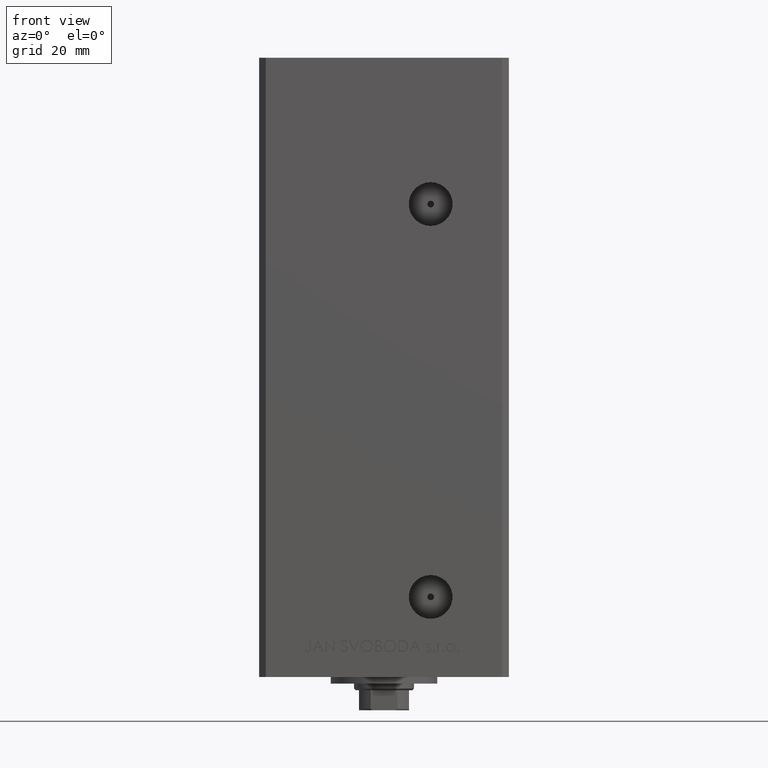
[diagram: clean part render]
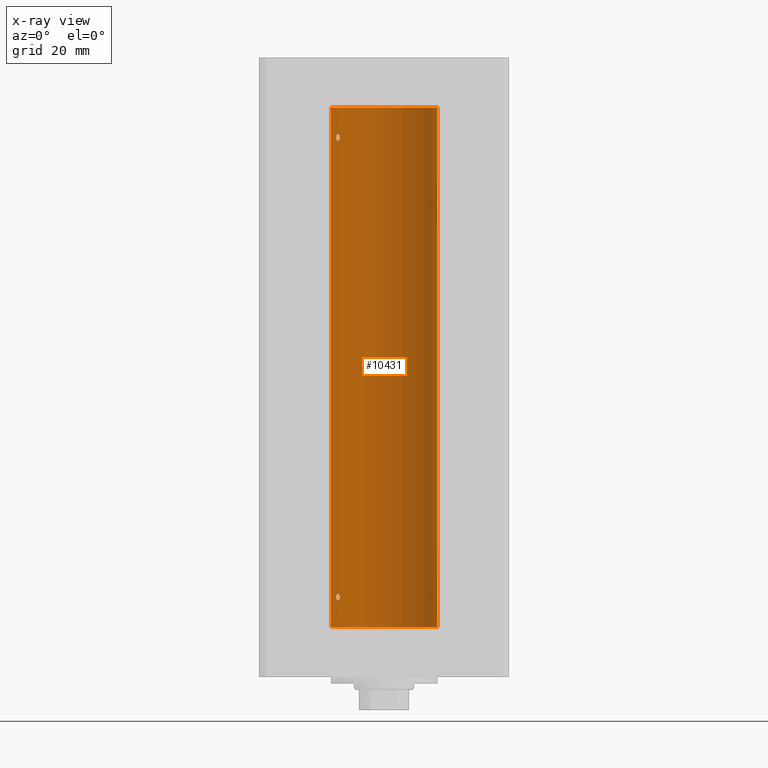
[diagram: x-ray — body ghosted, one internal face saturated and labeled with its STEP entity id]
A machine part, front view, then the same camera in x-ray: the body is ghosted and one INTERNAL B-rep face — a face not visible from any outside direction — is saturated and labeled: STEP entity #10431.
In plain terms, the highlighted cylindrical surface (partial cylindrical patch) has radius 16 mm, axis along (-0, -0, -1).
Its self-contained STEP definition (entity closure, byte-faithful):
#711 = EDGE_LOOP ( 'NONE', ( #36551, #17384, #41430, #24969 ) ) ;
#1526 = CARTESIAN_POINT ( 'NONE',  ( -14.38749456993815912, 6.999999999999998224, 147.0000000000000000 ) ) ;
#2319 = DIRECTION ( 'NONE',  ( 1.000000000000000000, 0.000000000000000000, 0.000000000000000000 ) ) ;
#2386 = CARTESIAN_POINT ( 'NONE',  ( -13.32426099938365383, 8.858246960865843178, 146.4688748775329827 ) ) ;
#3140 = CARTESIAN_POINT ( 'NONE',  ( -13.25390108270225298, 8.962947079338393408, 146.7214357623584817 ) ) ;
#3337 = CIRCLE ( 'NONE', #13748, 16.00000000000000000 ) ;
#3692 = DIRECTION ( 'NONE',  ( -0.000000000000000000, -0.000000000000000000, -1.000000000000000000 ) ) ;
#3745 = ORIENTED_EDGE ( 'NONE', *, *, #6053, .F. ) ;
#3892 = ORIENTED_EDGE ( 'NONE', *, *, #44762, .F. ) ;
#3959 = EDGE_CURVE ( 'NONE', #33557, #22701, #13990, .T. ) ;
#4556 = CARTESIAN_POINT ( 'NONE',  ( -14.17576283486774713, 7.420212263225987925, 147.8252530343043247 ) ) ;
#4792 = CARTESIAN_POINT ( 'NONE',  ( -14.37227256866306213, 7.031482256185710433, 147.2844572409764794 ) ) ;
#5147 = AXIS2_PLACEMENT_3D ( 'NONE', #33327, #44391, #10706 ) ;
#5203 = CARTESIAN_POINT ( 'NONE',  ( -14.38749456993816800, 6.999999999999984013, 9.000000000000007105 ) ) ;
#6053 = EDGE_CURVE ( 'NONE', #20300, #27130, #43515, .T. ) ;
#6165 = CARTESIAN_POINT ( 'NONE',  ( -13.56386909142669772, 8.487613976483638467, 146.1182242979960790 ) ) ;
#6405 = CARTESIAN_POINT ( 'NONE',  ( -13.23400746336172418, 8.992294519018086518, 146.8578145590230122 ) ) ;
#6453 = DIRECTION ( 'NONE',  ( -1.000000000000000000, 0.000000000000000000, 0.000000000000000000 ) ) ;
#6728 = EDGE_LOOP ( 'NONE', ( #3892, #19789 ) ) ;
#8707 = CARTESIAN_POINT ( 'NONE',  ( -13.55800260393082901, 8.498809056167502263, 9.903643446210180556 ) ) ;
#9054 = CARTESIAN_POINT ( 'NONE',  ( -13.70792461986390798, 8.256614593260307444, 147.9966215356422765 ) ) ;
#9136 = CARTESIAN_POINT ( 'NONE',  ( -14.38749456993816445, 6.999999999999982236, 8.857147409635420132 ) ) ;
#10045 = EDGE_CURVE ( 'NONE', #27130, #20300, #11063, .T. ) ;
#10431 = ADVANCED_FACE ( 'NONE', ( #41884, #18755, #10721 ), #48666, .F. ) ;
#10516 = CARTESIAN_POINT ( 'NONE',  ( 16.00000000000000000, 1.959434878635765131E-15, 156.0000000000000000 ) ) ;
#10671 = CARTESIAN_POINT ( 'NONE',  ( -14.37250282441143945, 7.031013007322937547, 146.7168569960372793 ) ) ;
#10676 = B_SPLINE_CURVE_WITH_KNOTS ( 'NONE', 3,
 ( #43140, #32321, #28304, #25013, #40103, #8707, #16980, #28791, #43395, #44125, #12980, #17230, #35355, #43642, #24034, #5203 ),
 .UNSPECIFIED., .F., .F.,
 ( 4, 2, 2, 2, 2, 2, 2, 4 ),
 ( 0.003377672193071775547, 0.003799209865779873581, 0.004220747538487971615, 0.005063822883904167682, 0.005485360556612266583, 0.005906898229320366352, 0.006328435902028466120, 0.006749973574736565021 ),
 .UNSPECIFIED. ) ;
#10706 = DIRECTION ( 'NONE',  ( 1.000000000000000000, 0.000000000000000000, 0.000000000000000000 ) ) ;
#10721 = FACE_BOUND ( 'NONE', #15176, .T. ) ;
#10926 = CARTESIAN_POINT ( 'NONE',  ( -13.49759407097375075, 8.592283911330225621, 146.1840991521276862 ) ) ;
#11063 = B_SPLINE_CURVE_WITH_KNOTS ( 'NONE', 3,
 ( #12823, #27657, #20361, #43488, #30253, #38726, #9054, #31176, #24377, #42992, #4556, #39211, #11147, #4792, #18684, #34024 ),
 .UNSPECIFIED., .F., .F.,
 ( 4, 2, 2, 2, 2, 2, 2, 4 ),
 ( 0.003377672193071779884, 0.003799209865779893530, 0.004220747538488007176, 0.005063822883904185029, 0.005485360556612275257, 0.005906898229320365484, 0.006328435902028455712, 0.006749973574736545072 ),
 .UNSPECIFIED. ) ;
#11147 = CARTESIAN_POINT ( 'NONE',  ( -14.31650799088418324, 7.144337649771909327, 147.5355226273736662 ) ) ;
#12693 = EDGE_CURVE ( 'NONE', #39075, #24255, #3337, .T. ) ;
#12823 = CARTESIAN_POINT ( 'NONE',  ( -13.22875655532295802, 8.999999999999996447, 147.0000000000000000 ) ) ;
#12980 = CARTESIAN_POINT ( 'NONE',  ( -14.17576283486775779, 7.420212263225971050, 9.825253034304363808 ) ) ;
#13748 = AXIS2_PLACEMENT_3D ( 'NONE', #42448, #21409, #2319 ) ;
#13937 = CARTESIAN_POINT ( 'NONE',  ( -13.91838063522421187, 7.892966471903947401, 145.9981483133087181 ) ) ;
#13990 = CIRCLE ( 'NONE', #5147, 16.00000000000000000 ) ;
#14694 = CARTESIAN_POINT ( 'NONE',  ( -13.22875655532295802, 8.999999999999996447, 147.0000000000000000 ) ) ;
#14963 = CARTESIAN_POINT ( 'NONE',  ( -16.00000000000000000, 0.000000000000000000, 0.000000000000000000 ) ) ;
#15087 = DIRECTION ( 'NONE',  ( -0.000000000000000000, -0.000000000000000000, -1.000000000000000000 ) ) ;
#15176 = EDGE_LOOP ( 'NONE', ( #3745, #39881 ) ) ;
#15285 = EDGE_CURVE ( 'NONE', #34837, #38760, #10676, .T. ) ;
#16072 = EDGE_CURVE ( 'NONE', #39075, #33557, #36522, .T. ) ;
#16182 = CARTESIAN_POINT ( 'NONE',  ( -13.91838063522421542, 7.892966471903923420, 7.998148313308686141 ) ) ;
#16910 = CARTESIAN_POINT ( 'NONE',  ( -14.37250282441144655, 7.031013007322923336, 8.716856996037272154 ) ) ;
#16980 = CARTESIAN_POINT ( 'NONE',  ( -13.70792461986391864, 8.256614593260295010, 9.996621535642280065 ) ) ;
#17230 = CARTESIAN_POINT ( 'NONE',  ( -14.27521483392929902, 7.227035590538620546, 9.647859870688199280 ) ) ;
#17384 = ORIENTED_EDGE ( 'NONE', *, *, #12693, .T. ) ;
#18684 = CARTESIAN_POINT ( 'NONE',  ( -14.38749456993816089, 6.999999999999999112, 147.1426254415242454 ) ) ;
#18755 = FACE_BOUND ( 'NONE', #6728, .T. ) ;
#19146 = CARTESIAN_POINT ( 'NONE',  ( -13.22875655532296335, 8.999999999999982236, 9.000000000000007105 ) ) ;
#19789 = ORIENTED_EDGE ( 'NONE', *, *, #15285, .F. ) ;
#19939 = CARTESIAN_POINT ( 'NONE',  ( -13.56386909142670660, 8.487613976483618927, 8.118224297996086136 ) ) ;
#20300 = VERTEX_POINT ( 'NONE', #1526 ) ;
#20361 = CARTESIAN_POINT ( 'NONE',  ( -13.24976519864029179, 8.969293778684573226, 147.2815352263351656 ) ) ;
#21409 = DIRECTION ( 'NONE',  ( -0.000000000000000000, 0.000000000000000000, 1.000000000000000000 ) ) ;
#21989 = LINE ( 'NONE', #30031, #34766 ) ;
#22478 = CARTESIAN_POINT ( 'NONE',  ( -13.22875655532295802, 8.999999999999998224, 146.9295656223616504 ) ) ;
#22479 = CARTESIAN_POINT ( 'NONE',  ( -14.38749456993816800, 6.999999999999984013, 9.000000000000007105 ) ) ;
#22524 = CARTESIAN_POINT ( 'NONE',  ( 0.000000000000000000, 0.000000000000000000, 156.0000000000000000 ) ) ;
#22701 = VERTEX_POINT ( 'NONE', #14963 ) ;
#23962 = CARTESIAN_POINT ( 'NONE',  ( -13.25390108270226364, 8.962947079338375644, 8.721435762358465738 ) ) ;
#24034 = CARTESIAN_POINT ( 'NONE',  ( -14.38749456993816978, 6.999999999999985789, 9.142625441524216967 ) ) ;
#24255 = VERTEX_POINT ( 'NONE', #47510 ) ;
#24377 = CARTESIAN_POINT ( 'NONE',  ( -13.98878315975728981, 7.767347947480344850, 147.9805461432612503 ) ) ;
#24460 = CARTESIAN_POINT ( 'NONE',  ( -13.49759407097375608, 8.592283911330213186, 8.184099152127679133 ) ) ;
#24969 = ORIENTED_EDGE ( 'NONE', *, *, #3959, .F. ) ;
#25013 = CARTESIAN_POINT ( 'NONE',  ( -13.32457971225033866, 8.857769707964637362, 9.531999662746560631 ) ) ;
#25494 = CARTESIAN_POINT ( 'NONE',  ( -13.77582987033441064, 8.139210687602716376, 146.0021105458418447 ) ) ;
#25996 = CARTESIAN_POINT ( 'NONE',  ( -14.11621438951178398, 7.533308783217012028, 146.1065710718395110 ) ) ;
#27130 = VERTEX_POINT ( 'NONE', #47955 ) ;
#27657 = CARTESIAN_POINT ( 'NONE',  ( -13.22875655532296157, 8.999999999999998224, 147.1406447609177519 ) ) ;
#27735 = CARTESIAN_POINT ( 'NONE',  ( -14.27547848986623258, 7.226527013162171720, 8.352555730181538962 ) ) ;
#27977 = CARTESIAN_POINT ( 'NONE',  ( -13.37674940693423054, 8.779234808442856419, 8.360244157126787812 ) ) ;
#28230 = CARTESIAN_POINT ( 'NONE',  ( -14.17528142432534288, 7.421143801852442934, 8.173943073538671555 ) ) ;
#28304 = CARTESIAN_POINT ( 'NONE',  ( -13.24976519864029889, 8.969293778684560792, 9.281535226335167366 ) ) ;
#28791 = CARTESIAN_POINT ( 'NONE',  ( -13.91892506969883669, 7.891973478508838902, 10.00155212263245375 ) ) ;
#29431 = CARTESIAN_POINT ( 'NONE',  ( -14.38749456993816800, 6.999999999999984013, 9.000000000000007105 ) ) ;
#29521 = CARTESIAN_POINT ( 'NONE',  ( -13.70481462797717320, 8.258098555717507949, 146.0259974772911278 ) ) ;
#30031 = CARTESIAN_POINT ( 'NONE',  ( -16.00000000000000000, 0.000000000000000000, 156.0000000000000000 ) ) ;
#30253 = CARTESIAN_POINT ( 'NONE',  ( -13.37741691572086289, 8.778212469423007036, 147.6408828602271228 ) ) ;
#30520 = AXIS2_PLACEMENT_3D ( 'NONE', #22524, #3692, #6453 ) ;
#31176 = CARTESIAN_POINT ( 'NONE',  ( -13.91892506969882426, 7.891973478508846895, 148.0015521226324324 ) ) ;
#31759 = CARTESIAN_POINT ( 'NONE',  ( -13.22875655532296513, 8.999999999999982236, 8.929565622361650412 ) ) ;
#31997 = CARTESIAN_POINT ( 'NONE',  ( -13.23400746336173484, 8.992294519018072307, 8.857814559023026391 ) ) ;
#32193 = VECTOR ( 'NONE', #15087, 1000.000000000000000 ) ;
#32248 = CARTESIAN_POINT ( 'NONE',  ( -14.11621438951178575, 7.533308783216997817, 8.106571071839523412 ) ) ;
#32321 = CARTESIAN_POINT ( 'NONE',  ( -13.22875655532296335, 8.999999999999978684, 9.140644760917750133 ) ) ;
#33039 = CARTESIAN_POINT ( 'NONE',  ( -13.98699950016872506, 7.770591669637118670, 146.0184768166485298 ) ) ;
#33191 = B_SPLINE_CURVE_WITH_KNOTS ( 'NONE', 3,
 ( #22479, #9136, #16910, #35783, #27735, #28230, #32248, #43818, #16182, #43568, #39290, #19939, #24460, #27977, #36020, #35536, #23962, #31997, #31759, #47337 ),
 .UNSPECIFIED., .F., .F.,
 ( 4, 2, 2, 2, 2, 2, 2, 2, 2, 4 ),
 ( 0.000000000000000000, 0.0004222090241339719434, 0.0008444180482679438868, 0.001266627072401915830, 0.001688836096535887774, 0.002111045120669859717, 0.002533254144803831660, 0.002955463168937803604, 0.003166567681004789359, 0.003377672193071775547 ),
 .UNSPECIFIED. ) ;
#33327 = CARTESIAN_POINT ( 'NONE',  ( 0.000000000000000000, 0.000000000000000000, 0.000000000000000000 ) ) ;
#33557 = VERTEX_POINT ( 'NONE', #40333 ) ;
#33795 = CARTESIAN_POINT ( 'NONE',  ( -14.17528142432533755, 7.421143801852456257, 146.1739430735386804 ) ) ;
#33943 = CARTESIAN_POINT ( 'NONE',  ( 16.00000000000000000, 1.959434878635765131E-15, 156.0000000000000000 ) ) ;
#34024 = CARTESIAN_POINT ( 'NONE',  ( -14.38749456993815912, 6.999999999999998224, 147.0000000000000000 ) ) ;
#34766 = VECTOR ( 'NONE', #45365, 1000.000000000000000 ) ;
#34837 = VERTEX_POINT ( 'NONE', #19146 ) ;
#35355 = CARTESIAN_POINT ( 'NONE',  ( -14.31650799088419213, 7.144337649771898668, 9.535522627373698157 ) ) ;
#35536 = CARTESIAN_POINT ( 'NONE',  ( -13.26838749541401263, 8.941532915076029653, 8.656217793921380022 ) ) ;
#35783 = CARTESIAN_POINT ( 'NONE',  ( -14.31660136508400072, 7.144151923086045741, 8.464621795444484675 ) ) ;
#36020 = CARTESIAN_POINT ( 'NONE',  ( -13.32426099938365915, 8.858246960865836073, 8.468874877532975631 ) ) ;
#36522 = LINE ( 'NONE', #33943, #32193 ) ;
#36551 = ORIENTED_EDGE ( 'NONE', *, *, #16072, .F. ) ;
#36805 = CARTESIAN_POINT ( 'NONE',  ( -14.27547848986623080, 7.226527013162187707, 146.3525557301815354 ) ) ;
#38726 = CARTESIAN_POINT ( 'NONE',  ( -13.55800260393082901, 8.498809056167511145, 147.9036434462101397 ) ) ;
#38760 = VERTEX_POINT ( 'NONE', #29431 ) ;
#39075 = VERTEX_POINT ( 'NONE', #10516 ) ;
#39211 = CARTESIAN_POINT ( 'NONE',  ( -14.27521483392929369, 7.227035590538639198, 147.6478598706881940 ) ) ;
#39290 = CARTESIAN_POINT ( 'NONE',  ( -13.70481462797718386, 8.258098555717490186, 8.025997477291141990 ) ) ;
#39881 = ORIENTED_EDGE ( 'NONE', *, *, #10045, .F. ) ;
#40103 = CARTESIAN_POINT ( 'NONE',  ( -13.37741691572086467, 8.778212469422998154, 9.640882860227108608 ) ) ;
#40333 = CARTESIAN_POINT ( 'NONE',  ( 16.00000000000000000, 1.959434878635765131E-15, 0.000000000000000000 ) ) ;
#40588 = CARTESIAN_POINT ( 'NONE',  ( -14.38749456993815556, 6.999999999999997335, 146.8571474096353882 ) ) ;
#41087 = CARTESIAN_POINT ( 'NONE',  ( -14.31660136508398828, 7.144151923086062617, 146.4646217954444296 ) ) ;
#41341 = CARTESIAN_POINT ( 'NONE',  ( -14.38749456993815912, 6.999999999999998224, 147.0000000000000000 ) ) ;
#41430 = ORIENTED_EDGE ( 'NONE', *, *, #49566, .T. ) ;
#41884 = FACE_OUTER_BOUND ( 'NONE', #711, .T. ) ;
#42448 = CARTESIAN_POINT ( 'NONE',  ( 0.000000000000000000, 0.000000000000000000, 156.0000000000000000 ) ) ;
#42992 = CARTESIAN_POINT ( 'NONE',  ( -14.11618354197461400, 7.533333301880476895, 147.8932076519334089 ) ) ;
#43140 = CARTESIAN_POINT ( 'NONE',  ( -13.22875655532296335, 8.999999999999982236, 9.000000000000007105 ) ) ;
#43395 = CARTESIAN_POINT ( 'NONE',  ( -13.98878315975730224, 7.767347947480332415, 9.980546143261287639 ) ) ;
#43488 = CARTESIAN_POINT ( 'NONE',  ( -13.32457971225032267, 8.857769707964649797, 147.5319996627465571 ) ) ;
#43515 = B_SPLINE_CURVE_WITH_KNOTS ( 'NONE', 3,
 ( #41341, #40588, #10671, #41087, #36805, #33795, #25996, #33039, #13937, #25494, #29521, #6165, #10926, #49112, #2386, #44610, #3140, #6405, #22478, #14694 ),
 .UNSPECIFIED., .F., .F.,
 ( 4, 2, 2, 2, 2, 2, 2, 2, 2, 4 ),
 ( 0.000000000000000000, 0.0004222090241339814844, 0.0008444180482679629687, 0.001266627072401944453, 0.001688836096535925937, 0.002111045120669907422, 0.002533254144803888906, 0.002955463168937870391, 0.003166567681004825354, 0.003377672193071779884 ),
 .UNSPECIFIED. ) ;
#43568 = CARTESIAN_POINT ( 'NONE',  ( -13.77582987033441952, 8.139210687602698613, 8.002110545841825129 ) ) ;
#43642 = CARTESIAN_POINT ( 'NONE',  ( -14.37227256866306746, 7.031482256185695334, 9.284457240976488279 ) ) ;
#43818 = CARTESIAN_POINT ( 'NONE',  ( -13.98699950016873039, 7.770591669637105348, 8.018476816648488992 ) ) ;
#44125 = CARTESIAN_POINT ( 'NONE',  ( -14.11618354197462644, 7.533333301880464461, 9.893207651933423108 ) ) ;
#44391 = DIRECTION ( 'NONE',  ( -0.000000000000000000, 0.000000000000000000, 1.000000000000000000 ) ) ;
#44610 = CARTESIAN_POINT ( 'NONE',  ( -13.26838749541400730, 8.941532915076043864, 146.6562177939213427 ) ) ;
#44762 = EDGE_CURVE ( 'NONE', #38760, #34837, #33191, .T. ) ;
#45365 = DIRECTION ( 'NONE',  ( -0.000000000000000000, -0.000000000000000000, -1.000000000000000000 ) ) ;
#47337 = CARTESIAN_POINT ( 'NONE',  ( -13.22875655532296335, 8.999999999999982236, 9.000000000000007105 ) ) ;
#47510 = CARTESIAN_POINT ( 'NONE',  ( -16.00000000000000000, 0.000000000000000000, 156.0000000000000000 ) ) ;
#47955 = CARTESIAN_POINT ( 'NONE',  ( -13.22875655532295802, 8.999999999999996447, 147.0000000000000000 ) ) ;
#48666 = CYLINDRICAL_SURFACE ( 'NONE', #30520, 16.00000000000000000 ) ;
#49112 = CARTESIAN_POINT ( 'NONE',  ( -13.37674940693422698, 8.779234808442867077, 146.3602441571268287 ) ) ;
#49566 = EDGE_CURVE ( 'NONE', #24255, #22701, #21989, .T. ) ;